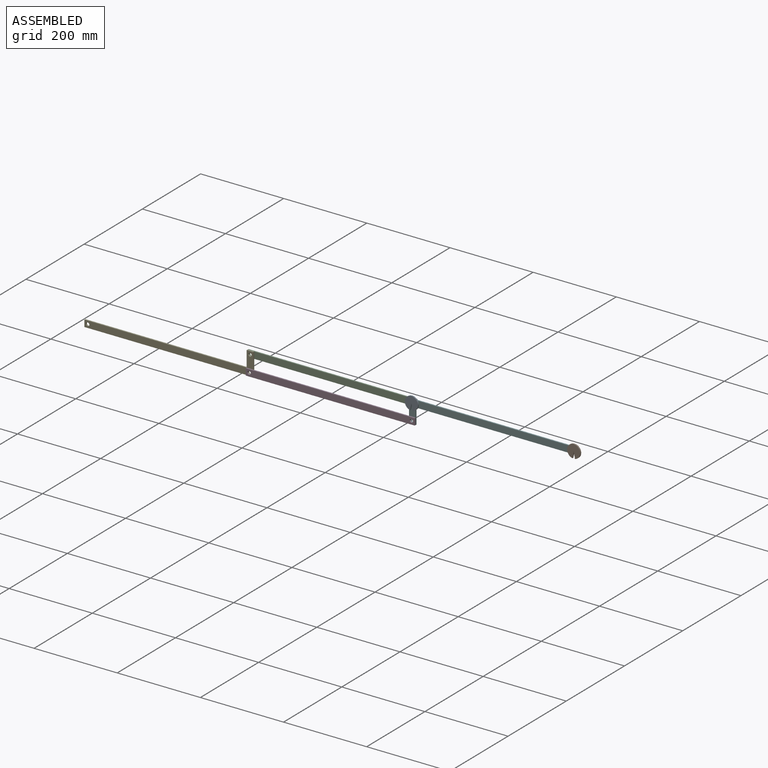
[diagram: assembled view]
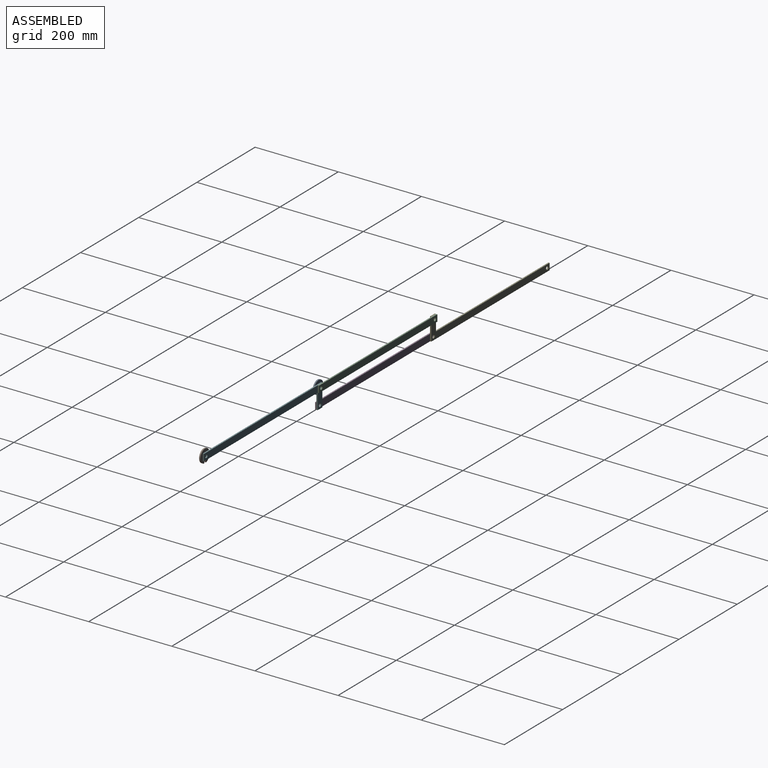
[diagram: assembled view, second angle]
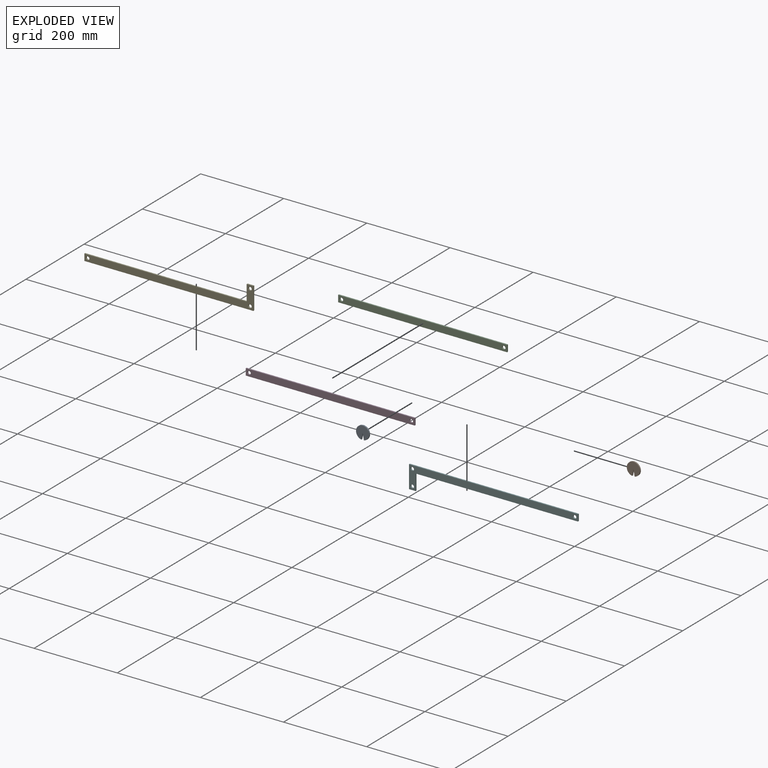
[diagram: exploded view]
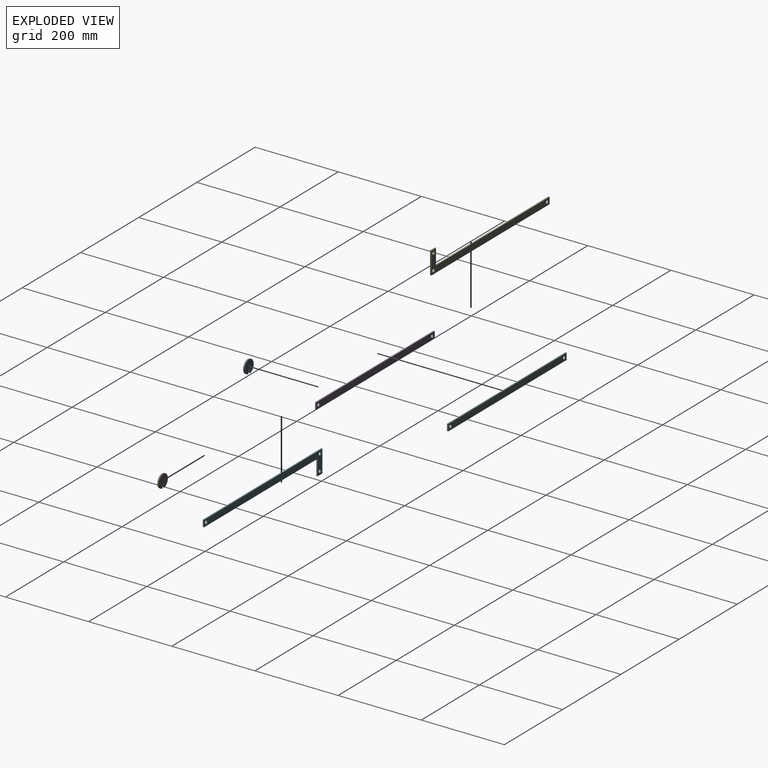
[diagram: exploded view, second angle]
ASSEMBLY  parts=6 mates=5
PART A: 5 faces, bbox 31.8x3.2x31.5 mm
  f0: plane 15.58x3.18mm, normal (0.98,0,0.19), area 50.4mm2, adj f1,f2,f3,f4
  f1: cylinder r=15.88mm len=31.75mm, axis (0,1,0), area 297.4mm2, adj f0,f2,f3,f4
  f2: plane 15.58x3.18mm, normal (-0.98,0,0.19), area 50.4mm2, adj f0,f1,f3,f4
  f3: plane 31.75x31.46mm, normal (0,-1,0), area 743.4mm2, adj f0,f1,f2
  f4: plane 31.75x31.46mm, normal (0,1,0), area 743.4mm2, adj f0,f1,f2
PART B: same geometry as A
PART C: 8 faces, bbox 406.4x3.2x16 mm
  f0: plane 406.4x3.18mm, normal (0,0,1), area 1290.3mm2, adj f1,f5,f6,f7
  f1: plane 16x3.18mm, normal (-1,0,0), area 50.8mm2, adj f0,f2,f6,f7
  f2: plane 406.4x3.18mm, normal (0,0,-1), area 1290.3mm2, adj f1,f5,f6,f7
  f3: cylinder r=4mm len=8mm, axis (0,1,0), area 79.8mm2, adj f6,f7
  f4: cylinder r=4mm len=8mm, axis (0,1,0), area 79.8mm2, adj f6,f7
  f5: plane 16x3.18mm, normal (1,0,0), area 50.8mm2, adj f0,f2,f6,f7
  f6: plane 406.4x16mm, normal (0,-1,0), area 6401.9mm2, adj f0,f1,f2,f3,f4,f5
  f7: plane 406.4x16mm, normal (0,1,0), area 6401.9mm2, adj f0,f1,f2,f3,f4,f5
PART D: same geometry as C
PART E: 11 faces, bbox 406.4x3.2x54.1 mm
  f0: plane 406.4x3.18mm, normal (0,0,1), area 1290.3mm2, adj f1,f7,f9,f10
  f1: plane 54.1x3.18mm, normal (-1,0,0), area 171.8mm2, adj f0,f2,f9,f10
  f2: plane 16x3.18mm, normal (0,0,-1), area 50.8mm2, adj f1,f3,f9,f10
  f3: plane 38.1x3.18mm, normal (1,0,0), area 121mm2, adj f2,f4,f9,f10
  f4: plane 390.4x3.18mm, normal (0,0,-1), area 1239.5mm2, adj f3,f7,f9,f10
  f5: cylinder r=4mm len=8mm, axis (0,1,0), area 79.8mm2, adj f9,f10
  f6: cylinder r=4mm len=8mm, axis (0,1,0), area 79.8mm2, adj f9,f10
  f7: plane 16x3.18mm, normal (1,0,0), area 50.8mm2, adj f0,f4,f9,f10
  f8: cylinder r=4mm len=8mm, axis (0,1,0), area 79.8mm2, adj f9,f10
  f9: plane 406.4x54.1mm, normal (0,-1,0), area 6961.2mm2, adj f0,f1,f2,f3,f4,f5,f6,f7
  f10: plane 406.4x54.1mm, normal (0,1,0), area 6961.2mm2, adj f0,f1,f2,f3,f4,f5,f6,f7
PART F: same geometry as E
PLACE A rot(axis=(1,0,0),180deg) t=(-409.72,-3.17,334.86)mm
PLACE B rot(axis=(1,0,0),180deg) t=(-19.32,-3.18,334.86)mm
PLACE C rot(axis=(0,1,0),0deg) t=(-742.97,6.35,112.51)mm
PLACE D rot(axis=(1,0,0),180deg) t=(-742.97,-3.18,-150.61)mm
PLACE E rot(axis=(0,-1,0),180deg) t=(-794.59,3.17,31.24)mm
PLACE F rot(axis=(0,1,0),0deg) t=(-376.61,3.17,-69.34)mm
MATE revolute C.f4 <-> F.f6  axis (0,-1,0) through (-390.4,3.18,0)mm
MATE revolute C.f3 <-> E.f5  axis (0,-1,0) through (-780.8,3.18,0)mm
MATE revolute D.f4 <-> F.f5  axis (0,1,0) through (-390.4,0,-38.1)mm
MATE revolute D.f3 <-> E.f6  axis (0,1,0) through (-780.8,0,-38.1)mm
MATE fastened A.f1 <-> C.f4  axis (0,1,0) through (-390.4,0,0)mm
